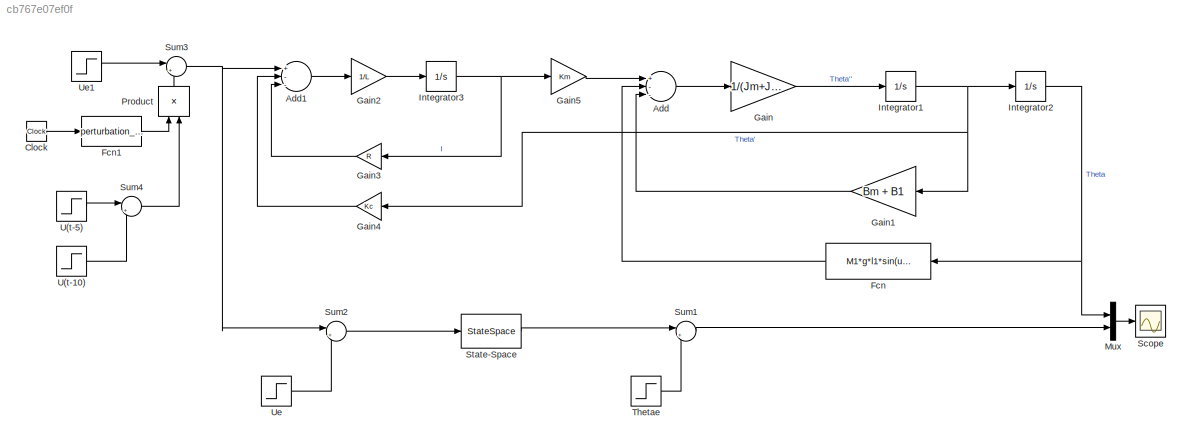
MODEL slx_cb767e07ef0f
KIND model
BLOCK [Sum] Add
  InputSameDT = off
  Inputs = +--
  OutDataTypeStr = Inherit: Inherit via internal rule
  Ports = [3, 1]
  SaturateOnIntegerOverflow = off
BLOCK [Sum] Add1
  InputSameDT = off
  Inputs = +--
  OutDataTypeStr = Inherit: Inherit via internal rule
  Ports = [3, 1]
  SaturateOnIntegerOverflow = off
BLOCK [Clock] Clock
BLOCK [Fcn] Fcn
  Expr = M1*g*l1*sin(u)/2
BLOCK [Fcn] Fcn1
  Expr = perturbation_u * 2.08102 * (1 + sin(5*u))
BLOCK [Gain] Gain
  Gain = 1/(Jm+J1)
  OutDataTypeStr = Inherit: Inherit via internal rule
  ParamDataTypeStr = Inherit: Inherit via internal rule
  SaturateOnIntegerOverflow = off
BLOCK [Gain] Gain1
  Gain = Bm + B1
  OutDataTypeStr = Inherit: Inherit via internal rule
  ParamDataTypeStr = Inherit: Inherit via internal rule
  SaturateOnIntegerOverflow = off
BLOCK [Gain] Gain2
  Gain = 1/L
  OutDataTypeStr = Inherit: Inherit via internal rule
  ParamDataTypeStr = Inherit: Inherit via internal rule
  SaturateOnIntegerOverflow = off
BLOCK [Gain] Gain3
  Gain = R
  OutDataTypeStr = Inherit: Inherit via internal rule
  ParamDataTypeStr = Inherit: Inherit via internal rule
  SaturateOnIntegerOverflow = off
BLOCK [Gain] Gain4
  Gain = Kc
  OutDataTypeStr = Inherit: Inherit via internal rule
  ParamDataTypeStr = Inherit: Inherit via internal rule
  SaturateOnIntegerOverflow = off
BLOCK [Gain] Gain5
  Gain = Km
  OutDataTypeStr = Inherit: Inherit via internal rule
  ParamDataTypeStr = Inherit: Inherit via internal rule
  SaturateOnIntegerOverflow = off
BLOCK [Integrator] Integrator1
  Ports = [1, 1]
BLOCK [Integrator] Integrator2
  InitialCondition = pi/4 + perturbation_theta*pi/180
  Ports = [1, 1]
BLOCK [Integrator] Integrator3
  InitialCondition = 4.16203
  Ports = [1, 1]
BLOCK [Mux] Mux
  DisplayOption = bar
  Inputs = 2
  Ports = [2, 1]
BLOCK [Product] Product
  InputSameDT = off
  OutDataTypeStr = Inherit: Inherit via internal rule
  Ports = [2, 1]
  RndMeth = Floor
  SaturateOnIntegerOverflow = off
BLOCK [Scope] Scope
  Floating = off
  NumInputPorts = 1
  Ports = [1]
  SampleTime = 0
  SaveToWorkspace = on
  ShowLegends = off
BLOCK [StateSpace] State-Space
  A = A
  B = B
  C = C
  D = D
  X0 = perturbation_theta * pi / 180
BLOCK [Sum] Sum1
  IconShape = round
  InputSameDT = off
  Inputs = |++
  OutDataTypeStr = Inherit: Inherit via internal rule
  Ports = [2, 1]
  SaturateOnIntegerOverflow = off
BLOCK [Sum] Sum2
  IconShape = round
  InputSameDT = off
  Inputs = |+-
  OutDataTypeStr = Inherit: Inherit via internal rule
  Ports = [2, 1]
  SaturateOnIntegerOverflow = off
BLOCK [Sum] Sum3
  IconShape = round
  InputSameDT = off
  Inputs = |++
  OutDataTypeStr = Inherit: Inherit via internal rule
  Ports = [2, 1]
  SaturateOnIntegerOverflow = off
BLOCK [Sum] Sum4
  IconShape = round
  InputSameDT = off
  Inputs = |+-
  OutDataTypeStr = Inherit: Inherit via internal rule
  Ports = [2, 1]
  SaturateOnIntegerOverflow = off
BLOCK [Step] Thetae
  After = pi/4
  SampleTime = 0
  Time = 0
BLOCK [Step] U(t-10)
  SampleTime = 0
  Time = 10
BLOCK [Step] U(t-5)
  SampleTime = 0
  Time = 5
BLOCK [Step] Ue
  After = 2.08102
  Before = 2.08102
  SampleTime = 0
  Time = 0
BLOCK [Step] Ue1
  After = 2.08102
  Before = 2.08102
  SampleTime = 0
  Time = 0
LINE Add1:1 -> Gain2:1
LINE Add:1 -> Gain:1
LINE Clock:1 -> Fcn1:1
LINE Fcn1:1 -> Product:1
LINE Fcn:1 -> Add:2
LINE Gain1:1 -> Add:3
LINE Gain2:1 -> Integrator3:1
LINE Gain3:1 -> Add1:3
LINE Gain4:1 -> Add1:2
LINE Gain5:1 -> Add:1
LINE Gain:1 -> Integrator1:1
NET Integrator1:1 -> Gain1:1, Gain4:1, Integrator2:1
NET Integrator2:1 -> Fcn:1, Mux:1
NET Integrator3:1 -> Gain3:1, Gain5:1
LINE Mux:1 -> Scope:1
LINE Product:1 -> Sum3:2
LINE State-Space:1 -> Sum1:1
LINE Sum1:1 -> Mux:2
LINE Sum2:1 -> State-Space:1
NET Sum3:1 -> Add1:1, Sum2:1
LINE Sum4:1 -> Product:2
LINE Thetae:1 -> Sum1:2
LINE U(t-10):1 -> Sum4:2
LINE U(t-5):1 -> Sum4:1
LINE Ue1:1 -> Sum3:1
LINE Ue:1 -> Sum2:2
note: NET lines group one-source signal fan-out (src -> all destinations, sorted); 1:1 wires keep LINE
